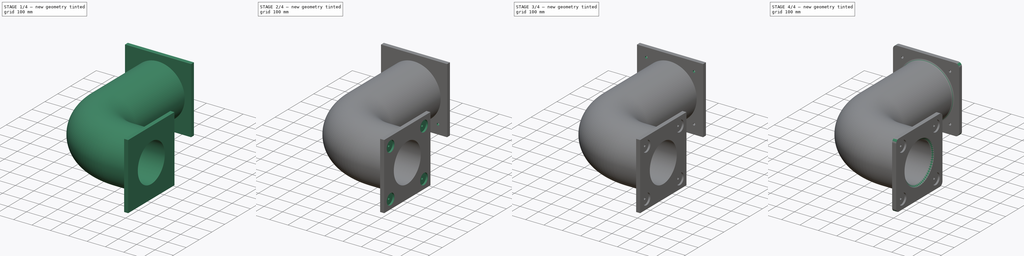
[diagram: build sequence overview — one tinted view per stage of 4, left to right]
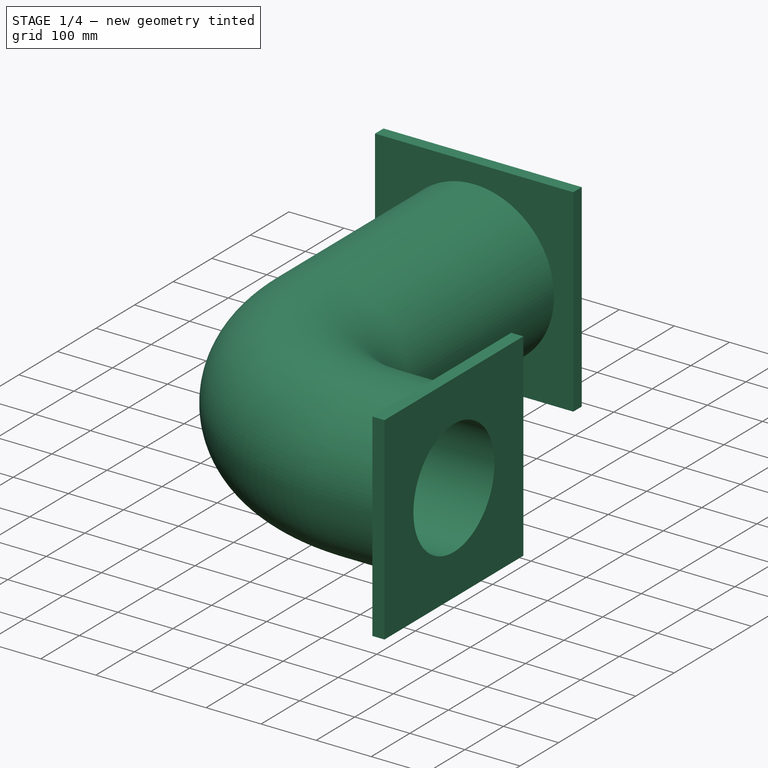
[diagram: stage 1 of 4 — iso view after this stage's code; geometry added in this stage tinted green]
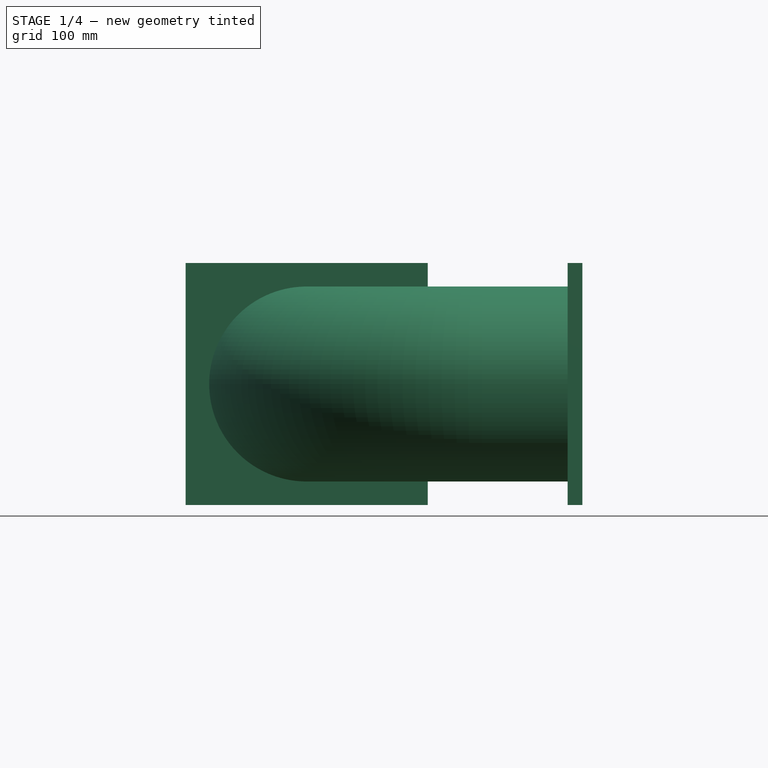
[diagram: stage 1 of 4 — front view after this stage's code; geometry added in this stage tinted green]
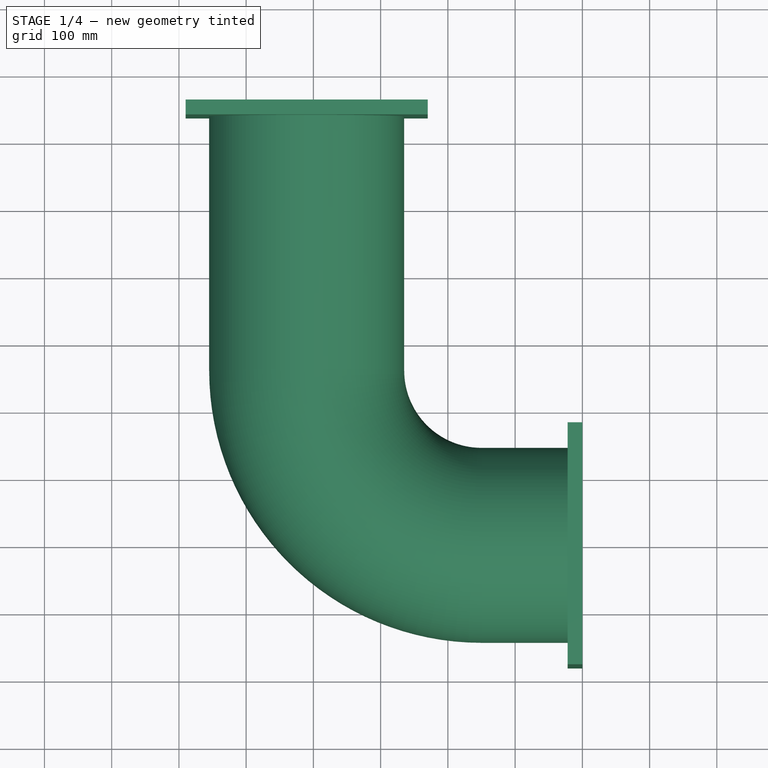
[diagram: stage 1 of 4 — top view after this stage's code; geometry added in this stage tinted green]
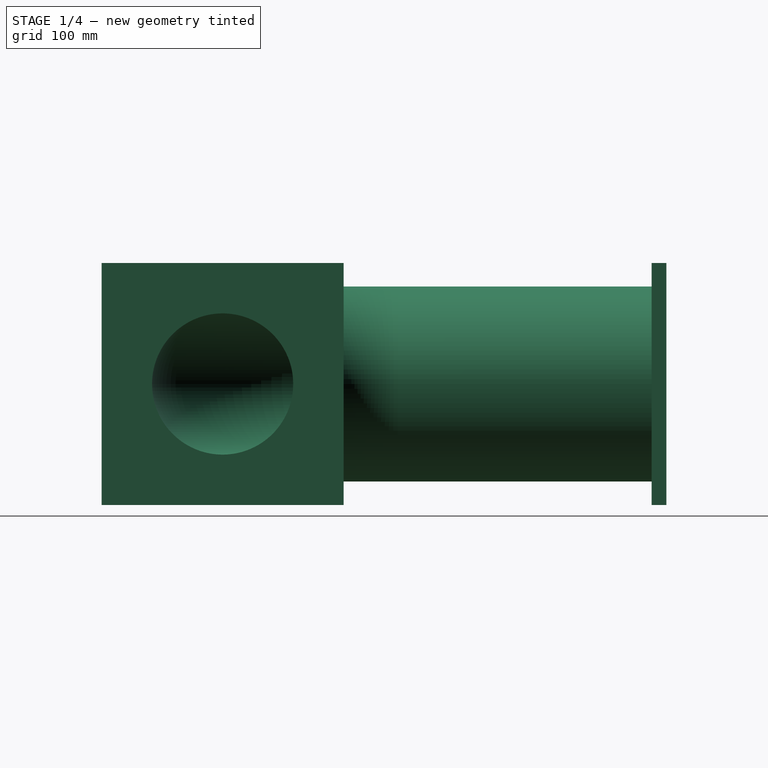
[diagram: stage 1 of 4 — right view after this stage's code; geometry added in this stage tinted green]
FCSTD DOCUMENT  (FreeCAD 1.0R39285 (Git))
Label: elbow pipe with flange(parametric)
License: All rights reserved
LicenseURL: https://en.wikipedia.org/wiki/All_rights_reserved
objects: Sketcher::SketchObject×6, PartDesign::Pad×2, PartDesign::Hole×2, PartDesign::PolarPattern×2, PartDesign::Chamfer×2, PartDesign::Fillet×2, Spreadsheet::Sheet×1, PartDesign::AdditivePipe×1, PartDesign::Body×1
note: 44 computed .brp shape members not serialized (recipe doc carries the construction recipe); baked Part::Feature solids carry a one-line shape summary decoded from their .brp

FEATURE [Spreadsheet::Sheet] Spreadsheet
  cells = A1='vertical_line1_len; B1(vertical_line1_len)=400; A2='horizontal_line1_len; B2(horizontal_line1_len)=150; A3='arc1_rad; B3(arc1_rad)=260; A4='pipe_id; B4(pipe_id)=210; A5='pipe_od; B5(pipe_od)=290; A6='flange_height; B6(flange_height)=360; A7='flange_width; B7(flange_width)=360; A8='flange_thickness; B8(flange_thickness)=22; A9='hole_position_x; B9(hole_position_x)=130; A10='hole_position_y; B10(hole_position_y)=130; A11='hole_dia; B11(hole_dia)=12.5; A12='counterbore_dia; B12(counterbore_dia)=60; A13='counterbore_depth; B13(counterbore_depth)=10; A14='pipe_chamfer_size; B14(chamfer_dia)=10; A15='corner_fillet_rad; B15(corner_fillet_dia)=20; A16='pipe_fillet_rad; B16(pipe_fillet_rad)=10
FEATURE [Sketcher::SketchObject] Sketch
  ArcFitTolerance = 1e-06
  AttachmentSupport = -> [XY_Plane]
  FullyConstrained = true
  MakeInternals = false
  MapMode = 5
  expr: Constraints[7] = <<Spreadsheet>>.horizontal_line1_len
  expr: Constraints[8] = <<Spreadsheet>>.vertical_line1_len
  expr: Constraints[9] = <<Spreadsheet>>.arc1_rad
  sketch-geometry (4):
    g0: LineSegment StartX=0 StartY=0 StartZ=0 EndX=-150 EndY=0 EndZ=0
    g1: LineSegment StartX=-410 StartY=260 StartZ=0 EndX=-410 EndY=660 EndZ=0
    g2: ArcOfCircle CenterX=-150 CenterY=260 CenterZ=0 NormalX=0 NormalY=0 NormalZ=1 AngleXU=0 Radius=260 StartAngle=3.14159 EndAngle=4.71239
    g3: GeomPoint [constr] X=-410 Y=0 Z=0
  constraints (10):
    c: Coincident(g-1,g0)
    c: PointOnObject(g3,g-1)
    c: Vertical(g1)
    c: PointOnObject(g3,g1)
    c: PointOnObject(g3,g0)
    c: Tangent(g1,g2) = 1.5708
    c: Tangent(g0,g2) = 1.5708
    c: DistanceX(g0,g0) = 150
    c: Distance(g1,g1) = 400
    c: Radius(g2) = 260
FEATURE [Sketcher::SketchObject] Sketch001
  ArcFitTolerance = 1e-06
  AttachmentSupport = -> [YZ_Plane]
  FullyConstrained = true
  MakeInternals = false
  MapMode = 5
  Placement = pos=(0,0,0) rot=(0.57735,0.57735,0.57735;2.0944rad)
  expr: Constraints[1] = <<Spreadsheet>>.pipe_id
  expr: Constraints[3] = <<Spreadsheet>>.pipe_od
  sketch-geometry (2):
    g0: Circle CenterX=0 CenterY=0 CenterZ=0 NormalX=0 NormalY=0 NormalZ=1 AngleXU=0 Radius=105
    g1: Circle CenterX=0 CenterY=0 CenterZ=0 NormalX=0 NormalY=0 NormalZ=1 AngleXU=0 Radius=145
  constraints (4):
    c: Coincident(g0,g-1)
    c: Diameter(g0) = 210
    c: Coincident(g1,g0)
    c: Diameter(g1) = 290
FEATURE [PartDesign::AdditivePipe] AdditivePipe
  AuxilleryCurvelinear = true
  AuxillerySpineTangent = false
  Binormal = (0,0,0)
  Mode = 0
  Placement = pos=(0,0,0) rot=(1,1,1;2.0944rad)
  Profile = -> Sketch001
  Refine = true
  Spine = -> Sketch
  SpineTangent = false
  Suppressed = false
  Transformation = 0
  Transition = 0
FEATURE [Sketcher::SketchObject] Sketch002
  ArcFitTolerance = 1e-06
  AttachmentSupport = -> [AdditivePipe]
  ExternalGeometry = -> [AdditivePipe]
  FullyConstrained = true
  MakeInternals = false
  MapMode = 5
  Placement = pos=(-5.175e-13,660,-3.72e-13) rot=(0.57735,0.57735,0.57735;4.18879rad)
  expr: Constraints[12] = <<Spreadsheet>>.flange_width
  expr: Constraints[13] = <<Spreadsheet>>.flange_height
  sketch-geometry (6):
    g0: Circle CenterX=1.066e-13 CenterY=-410 CenterZ=0 NormalX=0 NormalY=0 NormalZ=1 AngleXU=0 Radius=105
    g1: LineSegment StartX=-180 StartY=-230 StartZ=0 EndX=-180 EndY=-590 EndZ=0
    g2: LineSegment StartX=-180 StartY=-590 StartZ=0 EndX=180 EndY=-590 EndZ=0
    g3: LineSegment StartX=180 StartY=-590 StartZ=0 EndX=180 EndY=-230 EndZ=0
    g4: LineSegment StartX=180 StartY=-230 StartZ=0 EndX=-180 EndY=-230 EndZ=0
    g5: GeomPoint [constr] X=1.066e-13 Y=-410 Z=0
  constraints (14):
    c: Coincident(g0,g-3)
    c: Equal(g0,g-3)
    c: Coincident(g1,g2)
    c: Coincident(g2,g3)
    c: Coincident(g3,g4)
    c: Coincident(g4,g1)
    c: Vertical(g1)
    c: Vertical(g3)
    c: Horizontal(g2)
    c: Horizontal(g4)
    c: Symmetric(g3,g1,g5)
    c: Coincident(g5,g0)
    c: DistanceX(g4,g4) = 360
    c: DistanceY(g3,g3) = 360
FEATURE [PartDesign::Pad] Pad
  BaseFeature = -> AdditivePipe
  Direction = (0,1,0)
  Length = 22
  Length2 = 10
  Placement = pos=(0,0,0) rot=(1,1,1;2.0944rad)
  Profile = -> Sketch002
  ReferenceAxis = -> Sketch002 [N_Axis]
  Refine = true
  Reversed = true
  Suppressed = false
  Type = 0
  expr: Length = <<Spreadsheet>>.flange_thickness
FEATURE [Sketcher::SketchObject] Sketch003
  ArcFitTolerance = 1e-06
  AttachmentSupport = -> [Pad]
  FullyConstrained = true
  MakeInternals = false
  MapMode = 5
  Placement = pos=(0,0,0) rot=(0.57735,0.57735,0.57735;2.0944rad)
  expr: Constraints[12] = <<Spreadsheet>>.flange_height
  expr: Constraints[13] = <<Spreadsheet>>.flange_width
  expr: Constraints[1] = <<Spreadsheet>>.pipe_id
  sketch-geometry (6):
    g0: Circle CenterX=0 CenterY=0 CenterZ=0 NormalX=0 NormalY=0 NormalZ=1 AngleXU=0 Radius=105
    g1: LineSegment StartX=-180 StartY=180 StartZ=0 EndX=-180 EndY=-180 EndZ=0
    g2: LineSegment StartX=-180 StartY=-180 StartZ=0 EndX=180 EndY=-180 EndZ=0
    g3: LineSegment StartX=180 StartY=-180 StartZ=0 EndX=180 EndY=180 EndZ=0
    g4: LineSegment StartX=180 StartY=180 StartZ=0 EndX=-180 EndY=180 EndZ=0
    g5: GeomPoint [constr] X=0 Y=0 Z=0
  constraints (14):
    c: Coincident(g0,g-1)
    c: Diameter(g0) = 210
    c: Coincident(g1,g2)
    c: Coincident(g2,g3)
    c: Coincident(g3,g4)
    c: Coincident(g4,g1)
    c: Vertical(g1)
    c: Vertical(g3)
    c: Horizontal(g2)
    c: Horizontal(g4)
    c: Symmetric(g3,g1,g5)
    c: Coincident(g5,g0)
    c: DistanceY(g1,g1) = 360
    c: DistanceX(g4,g4) = 360
FEATURE [PartDesign::Pad] Pad001
  BaseFeature = -> Pad
  Direction = (1,0,0)
  Length = 22
  Length2 = 10
  Placement = pos=(0,0,0) rot=(1,1,1;2.0944rad)
  Profile = -> Sketch003
  ReferenceAxis = -> Sketch003 [N_Axis]
  Refine = true
  Reversed = true
  Suppressed = false
  Type = 0
  expr: Length = <<Spreadsheet>>.flange_thickness
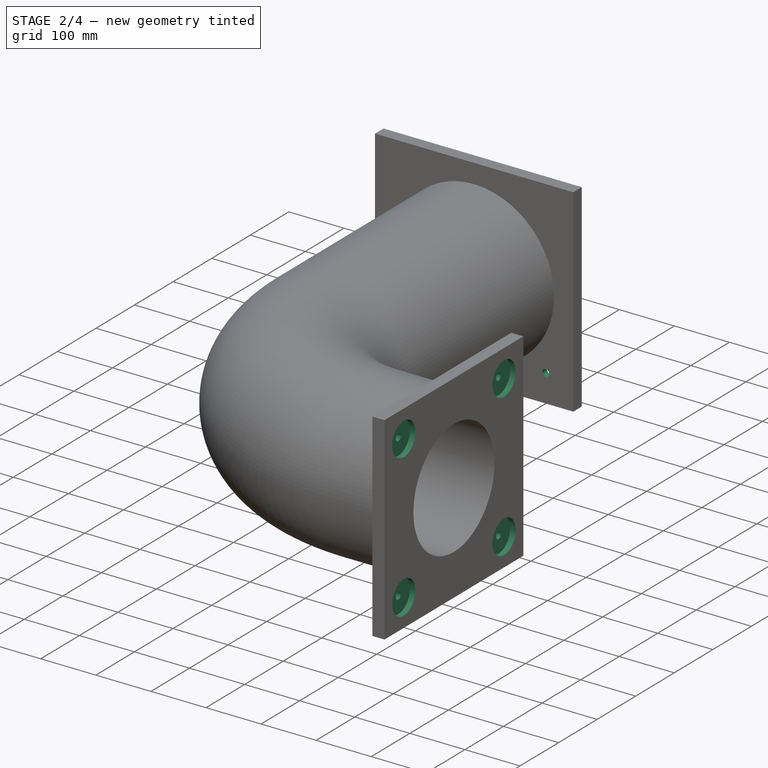
[diagram: stage 2 of 4 — iso view after this stage's code; geometry added in this stage tinted green]
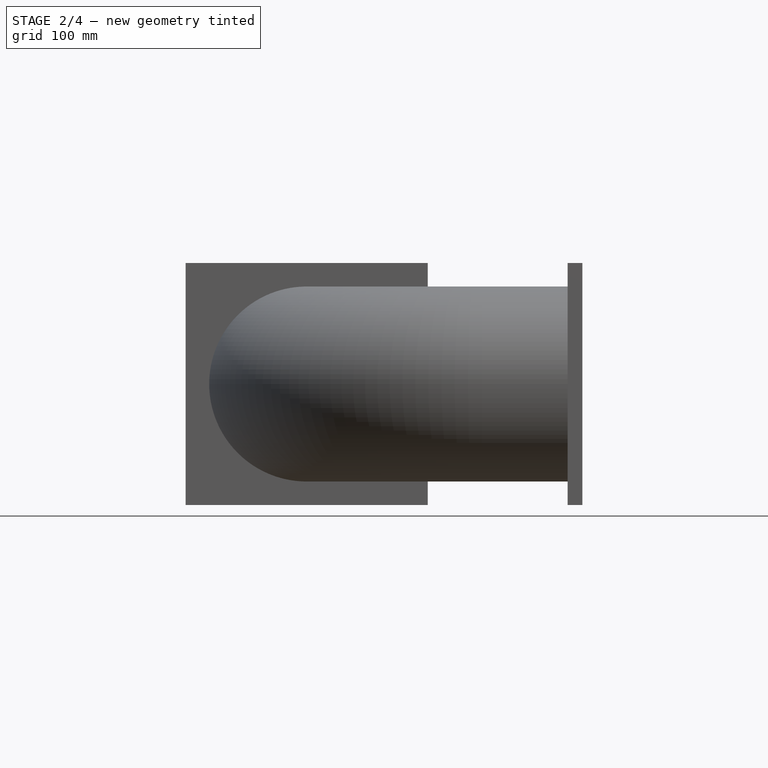
[diagram: stage 2 of 4 — front view after this stage's code; geometry added in this stage tinted green]
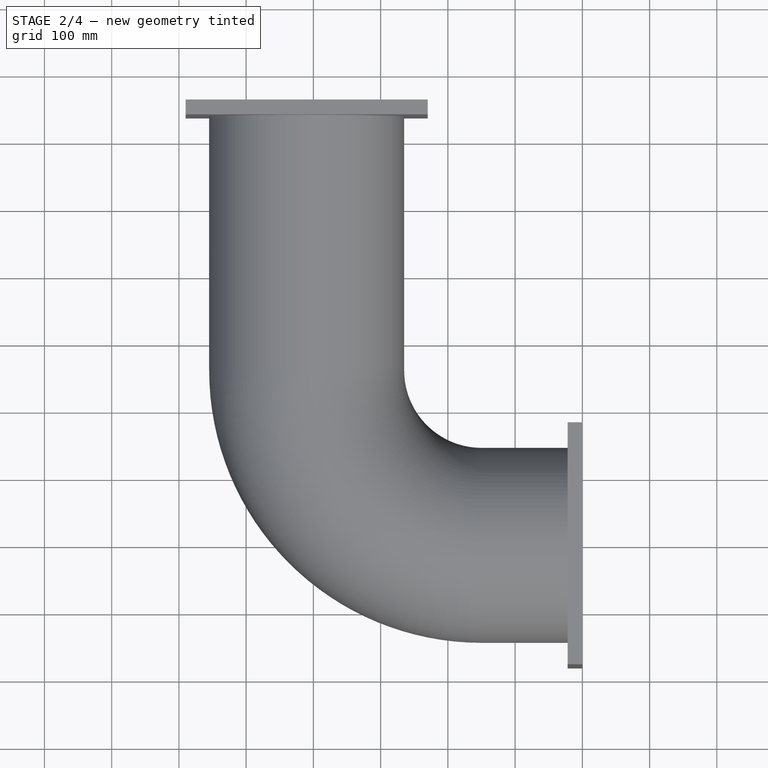
[diagram: stage 2 of 4 — top view after this stage's code; geometry added in this stage tinted green]
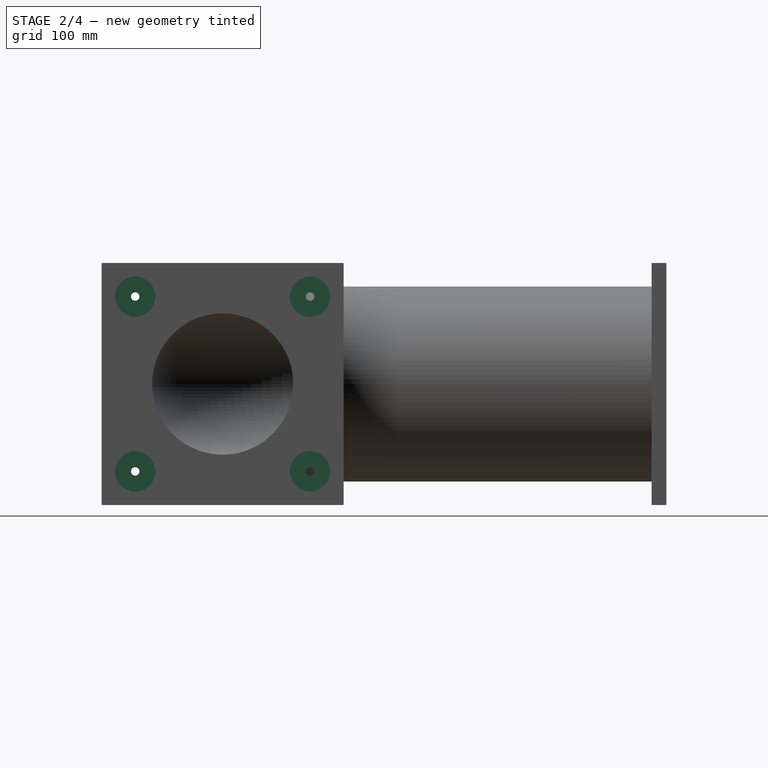
[diagram: stage 2 of 4 — right view after this stage's code; geometry added in this stage tinted green]
FEATURE [Sketcher::SketchObject] Sketch004
  ArcFitTolerance = 1e-06
  AttachmentSupport = -> [Pad001]
  ExternalGeometry = -> [Pad001]
  FullyConstrained = true
  MakeInternals = false
  MapMode = 5
  Placement = pos=(0,0,0) rot=(0.57735,0.57735,0.57735;2.0944rad)
  expr: Constraints[0] = <<Spreadsheet>>.hole_dia
  expr: Constraints[1] = <<Spreadsheet>>.hole_position_y
  expr: Constraints[2] = <<Spreadsheet>>.hole_position_x
  sketch-geometry (1):
    g0: Circle CenterX=-130 CenterY=130 CenterZ=0 NormalX=0 NormalY=0 NormalZ=1 AngleXU=0 Radius=6.25
  constraints (3):
    c: Diameter(g0) = 12.5
    c: Distance(g0,g-1) = 130
    c: Distance(g0,g-2) = 130
FEATURE [PartDesign::Hole] Hole
  BaseFeature = -> Pad001
  CustomThreadClearance = 0
  Depth = 22
  DepthType = 0
  Diameter = 12.5
  DrillForDepth = false
  DrillPoint = 0
  DrillPointAngle = 118
  HoleCutCountersinkAngle = 90
  HoleCutCustomValues = false
  HoleCutDepth = 10
  HoleCutDiameter = 60
  HoleCutType = 1
  ModelThread = false
  Placement = pos=(0,0,0) rot=(1,1,1;2.0944rad)
  Profile = -> Sketch004
  Refine = true
  Suppressed = false
  Tapered = false
  TaperedAngle = 90
  ThreadClass = 0
  ThreadDepth = 22
  ThreadDepthType = 0
  ThreadDirection = 0
  ThreadFit = 0
  ThreadSize = 0
  ThreadType = 0
  Threaded = false
  UseCustomThreadClearance = false
  expr: Depth = <<Spreadsheet>>.flange_thickness
  expr: Diameter = <<Spreadsheet>>.hole_dia
  expr: HoleCutDepth = <<Spreadsheet>>.counterbore_depth
  expr: HoleCutDiameter = <<Spreadsheet>>.counterbore_dia
FEATURE [PartDesign::PolarPattern] PolarPattern
  Angle = 360
  Axis = -> Sketch004 [N_Axis]
  BaseFeature = -> Hole
  Mode = 0
  Occurrences = 4
  Offset = 120
  Originals = -> [Hole]
  Placement = pos=(0,0,0) rot=(1,1,1;2.0944rad)
  Refine = true
  Suppressed = false
  TransformMode = 0
FEATURE [Sketcher::SketchObject] Sketch005
  ArcFitTolerance = 1e-06
  AttachmentSupport = -> [PolarPattern]
  ExternalGeometry = -> [PolarPattern]
  FullyConstrained = true
  MakeInternals = false
  MapMode = 5
  Placement = pos=(2.084e-13,660,-5.129e-13) rot=(0.57735,0.57735,0.57735;4.18879rad)
  expr: Constraints[0] = <<Spreadsheet>>.hole_position_x
  expr: Constraints[1] = <<Spreadsheet>>.hole_position_y
  expr: Constraints[2] = <<Spreadsheet>>.hole_dia
  sketch-geometry (1):
    g0: Circle CenterX=-130 CenterY=-280 CenterZ=0 NormalX=0 NormalY=0 NormalZ=1 AngleXU=0 Radius=6.25
  constraints (3):
    c: DistanceX(g0,g-4) = 130
    c: DistanceY(g-4,g0) = 130
    c: Diameter(g0) = 12.5
FEATURE [PartDesign::Hole] Hole001
  BaseFeature = -> PolarPattern
  CustomThreadClearance = 0
  Depth = 22
  DepthType = 0
  Diameter = 12.5
  DrillForDepth = false
  DrillPoint = 0
  DrillPointAngle = 118
  HoleCutCountersinkAngle = 90
  HoleCutCustomValues = false
  HoleCutDepth = 10
  HoleCutDiameter = 60
  HoleCutType = 1
  ModelThread = false
  Placement = pos=(0,0,0) rot=(1,1,1;2.0944rad)
  Profile = -> Sketch005
  Refine = true
  Suppressed = false
  Tapered = false
  TaperedAngle = 90
  ThreadClass = 0
  ThreadDepth = 22
  ThreadDepthType = 0
  ThreadDirection = 0
  ThreadFit = 0
  ThreadSize = 0
  ThreadType = 0
  Threaded = false
  UseCustomThreadClearance = false
  expr: Depth = <<Spreadsheet>>.flange_thickness
  expr: Diameter = <<Spreadsheet>>.hole_dia
  expr: HoleCutDepth = <<Spreadsheet>>.counterbore_depth
  expr: HoleCutDiameter = <<Spreadsheet>>.counterbore_dia
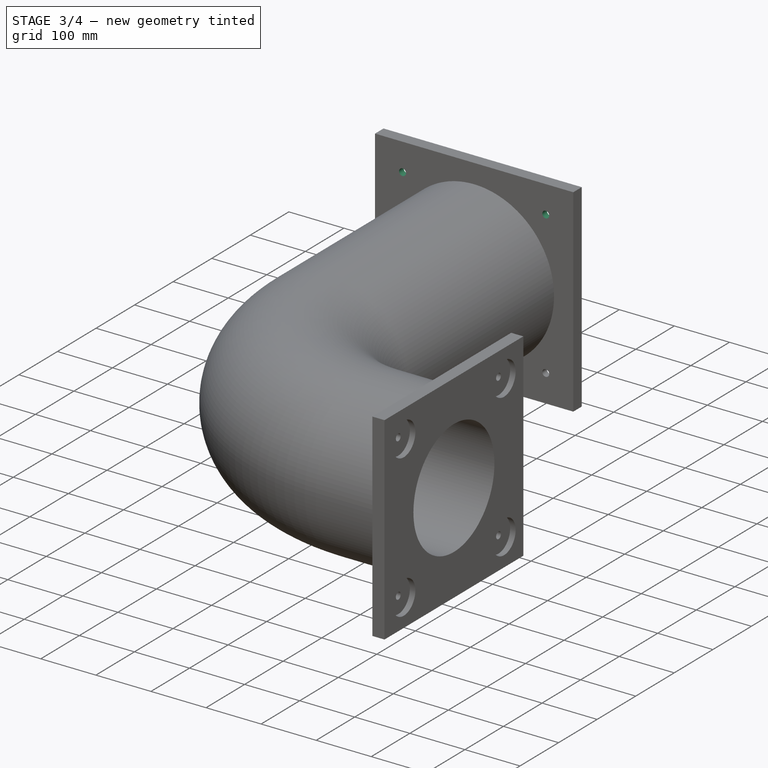
[diagram: stage 3 of 4 — iso view after this stage's code; geometry added in this stage tinted green]
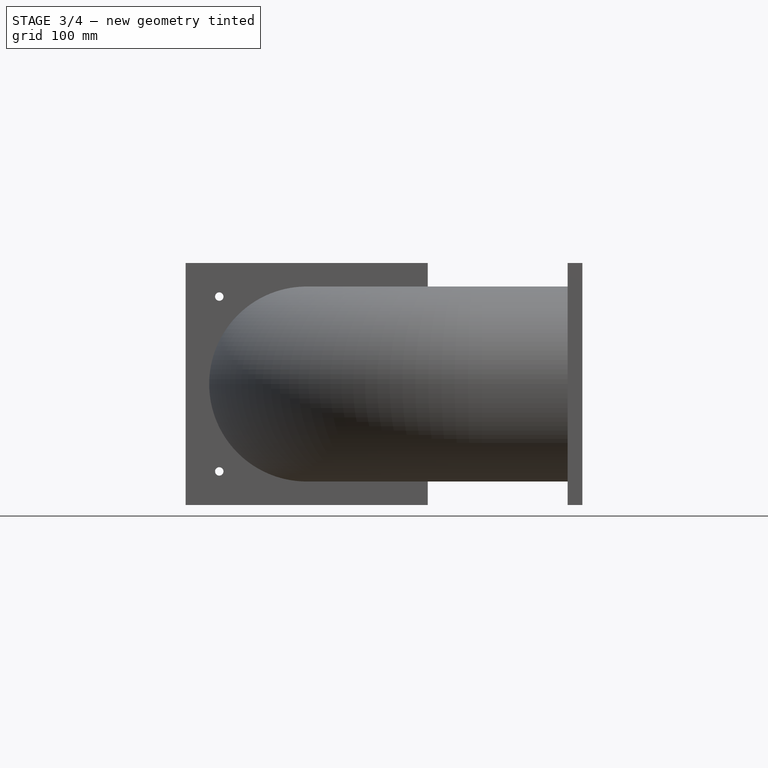
[diagram: stage 3 of 4 — front view after this stage's code; geometry added in this stage tinted green]
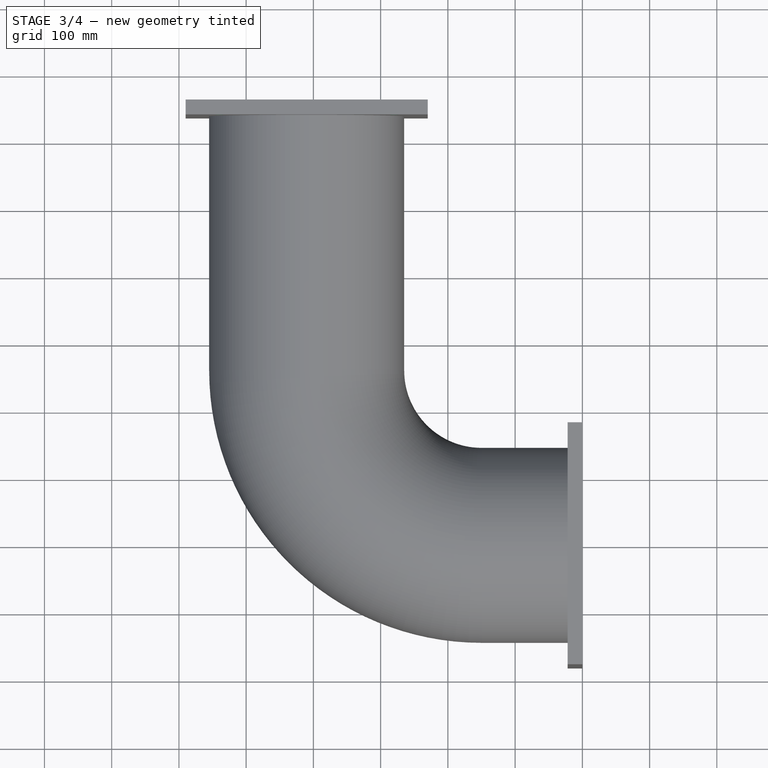
[diagram: stage 3 of 4 — top view after this stage's code; geometry added in this stage tinted green]
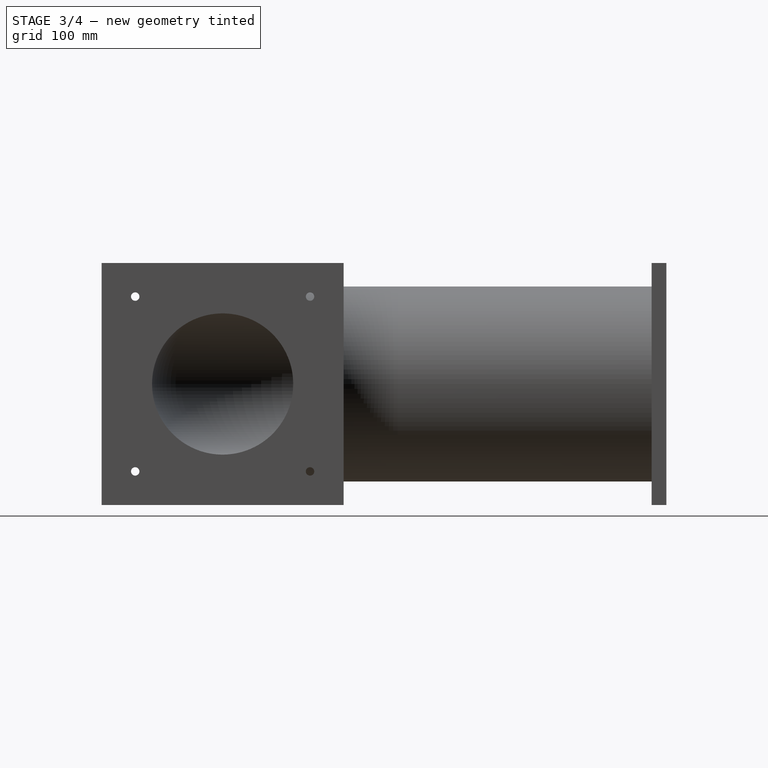
[diagram: stage 3 of 4 — right view after this stage's code; geometry added in this stage tinted green]
FEATURE [PartDesign::PolarPattern] PolarPattern001
  Angle = 360
  Axis = -> Hole001 [Edge8]
  BaseFeature = -> Hole001
  Mode = 0
  Occurrences = 4
  Offset = 120
  Originals = -> [Hole001]
  Placement = pos=(0,0,0) rot=(1,1,1;2.0944rad)
  Refine = true
  Suppressed = false
  TransformMode = 0
FEATURE [PartDesign::Chamfer] Chamfer
  Angle = 45
  Base = -> PolarPattern001 [Edge8]
  BaseFeature = -> PolarPattern001
  ChamferType = 0
  FlipDirection = false
  Placement = pos=(0,0,0) rot=(1,1,1;2.0944rad)
  Refine = true
  Size = 10
  Size2 = 1
  SupportTransform = false
  Suppressed = false
  UseAllEdges = false
  expr: Size = <<Spreadsheet>>.chamfer_dia
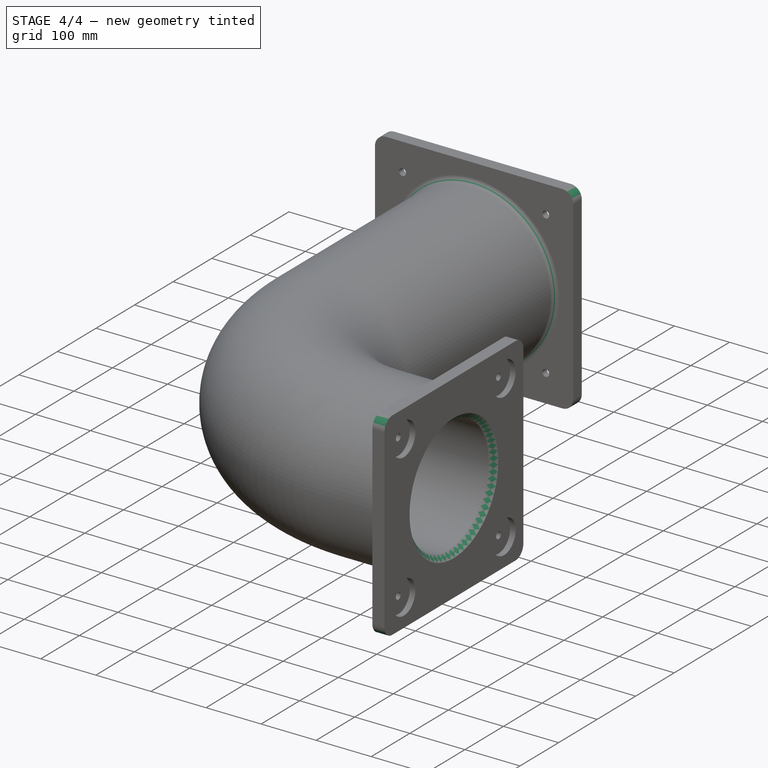
[diagram: stage 4 of 4 — iso view after this stage's code; geometry added in this stage tinted green]
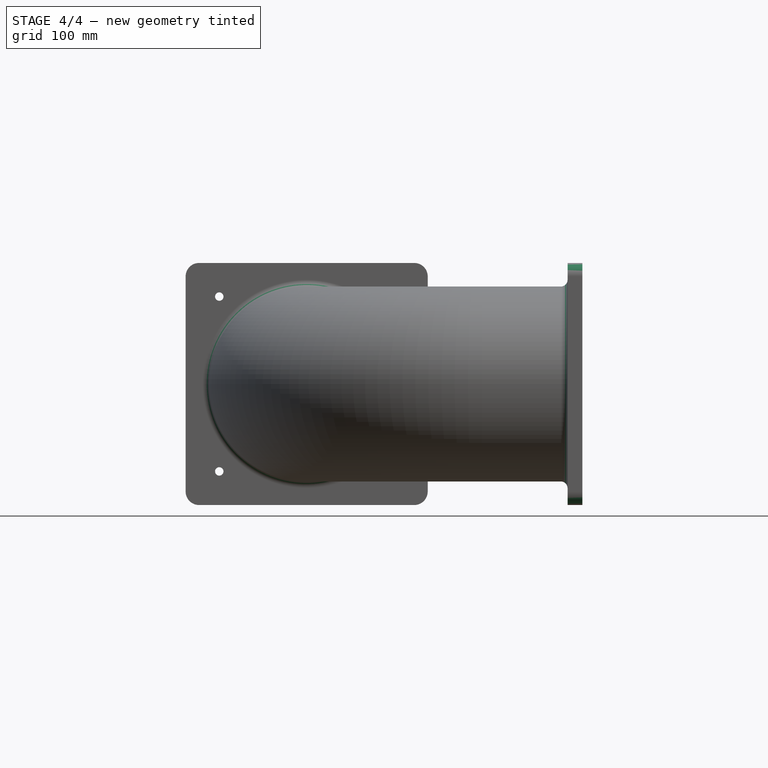
[diagram: stage 4 of 4 — front view after this stage's code; geometry added in this stage tinted green]
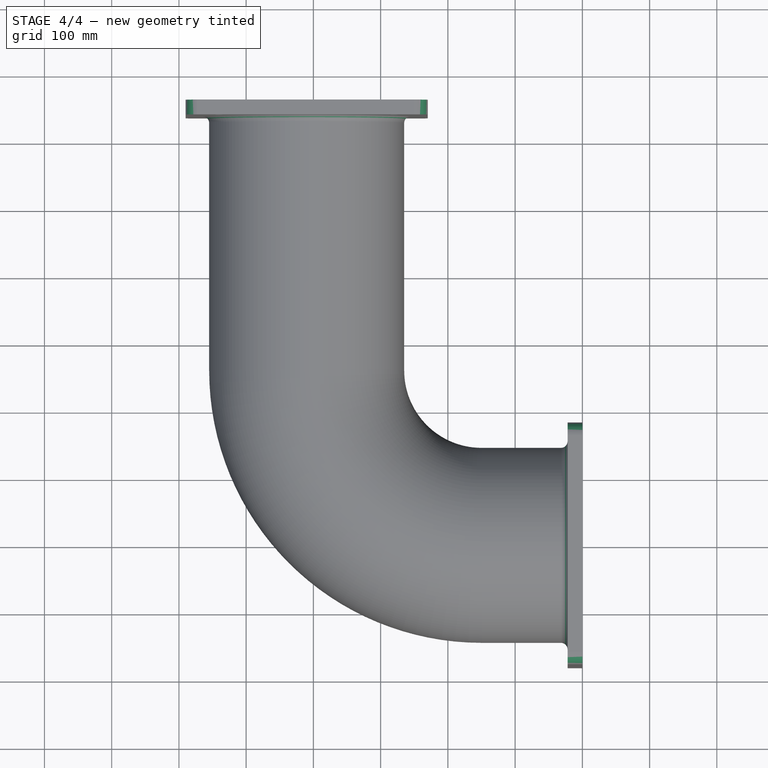
[diagram: stage 4 of 4 — top view after this stage's code; geometry added in this stage tinted green]
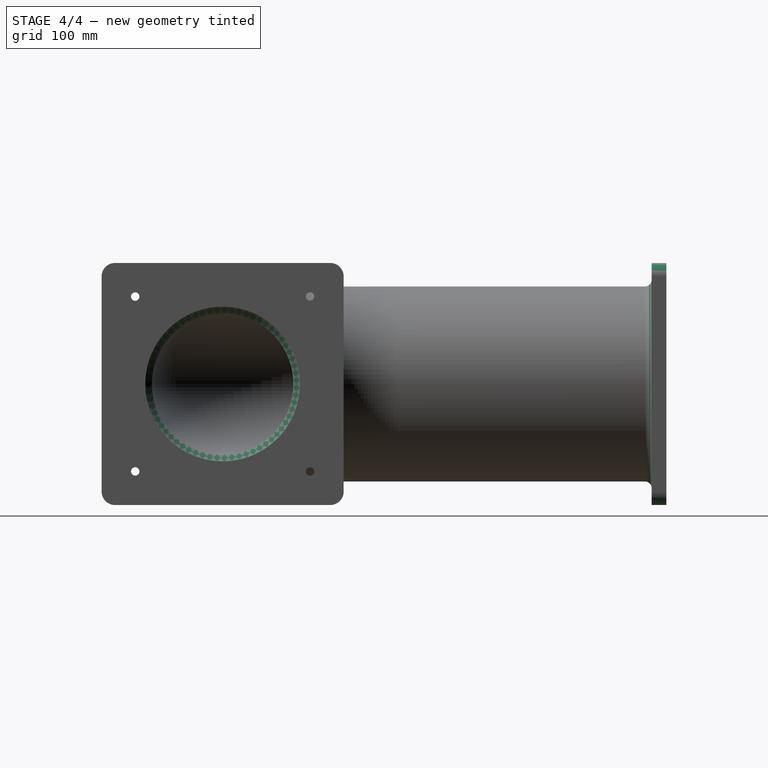
[diagram: stage 4 of 4 — right view after this stage's code; geometry added in this stage tinted green]
FEATURE [PartDesign::Chamfer] Chamfer001
  Angle = 45
  Base = -> Chamfer [Edge20]
  BaseFeature = -> Chamfer
  ChamferType = 0
  FlipDirection = false
  Placement = pos=(0,0,0) rot=(1,1,1;2.0944rad)
  Refine = true
  Size = 10
  Size2 = 1
  SupportTransform = false
  Suppressed = false
  UseAllEdges = false
  expr: Size = <<Spreadsheet>>.chamfer_dia
FEATURE [PartDesign::Fillet] Fillet
  Base = -> Chamfer001 [Edge62,Edge65,Edge63,Edge67,Edge24,Edge22,Edge19,Edge20]
  BaseFeature = -> Chamfer001
  Placement = pos=(0,0,0) rot=(1,1,1;2.0944rad)
  Radius = 20
  Refine = true
  SupportTransform = false
  Suppressed = false
  UseAllEdges = false
  expr: Radius = <<Spreadsheet>>.corner_fillet_dia
FEATURE [PartDesign::Fillet] Fillet001
  Base = -> Fillet [Edge43,Edge65]
  BaseFeature = -> Fillet
  Placement = pos=(0,0,0) rot=(1,1,1;2.0944rad)
  Radius = 10
  Refine = true
  SupportTransform = false
  Suppressed = false
  UseAllEdges = false
  expr: Radius = <<Spreadsheet>>.pipe_fillet_rad
FEATURE [PartDesign::Body] Body
  AllowCompound = false
  Group = -> [Sketch,Sketch001,AdditivePipe,Sketch002,Pad,Sketch003,Pad001,Sketch004,Hole,PolarPattern,Sketch005,Hole001,PolarPattern001,Chamfer,Chamfer001,Fillet,Fillet001]
  Origin = -> Origin
  Tip = -> Fillet001
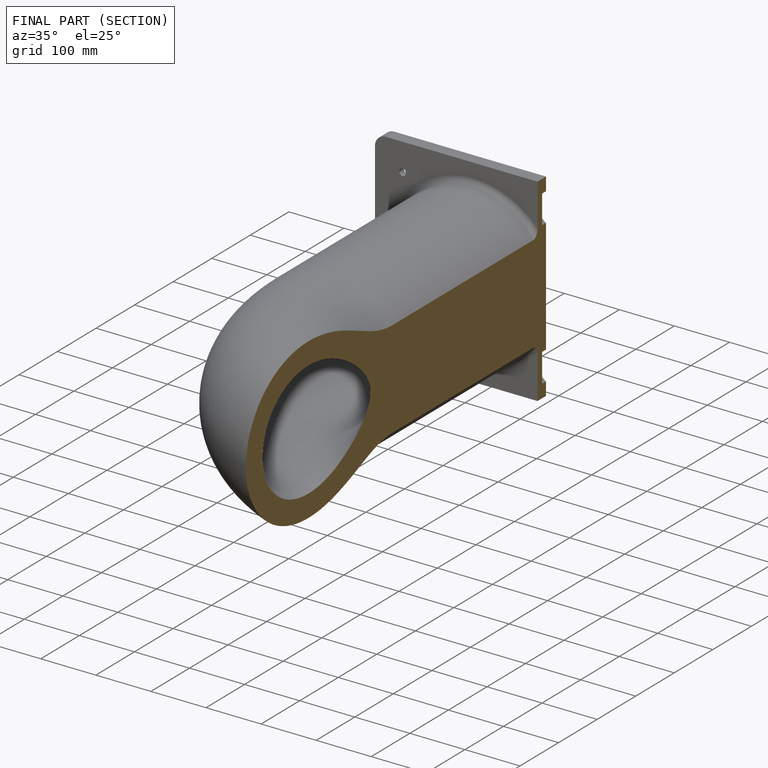
[diagram: finished part — half-section view (interior)]
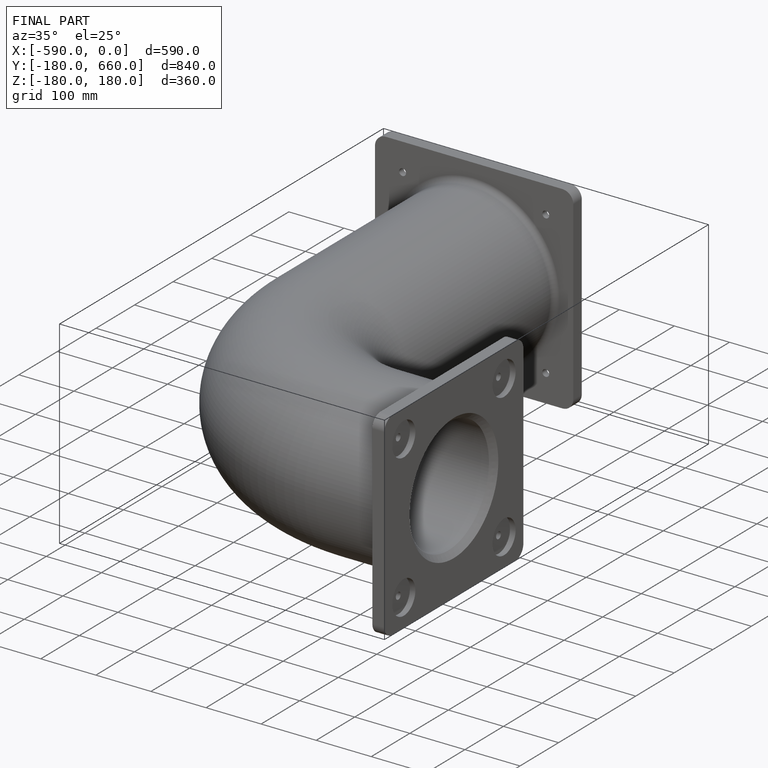
[diagram: finished part — iso view with bounding-box wireframe]
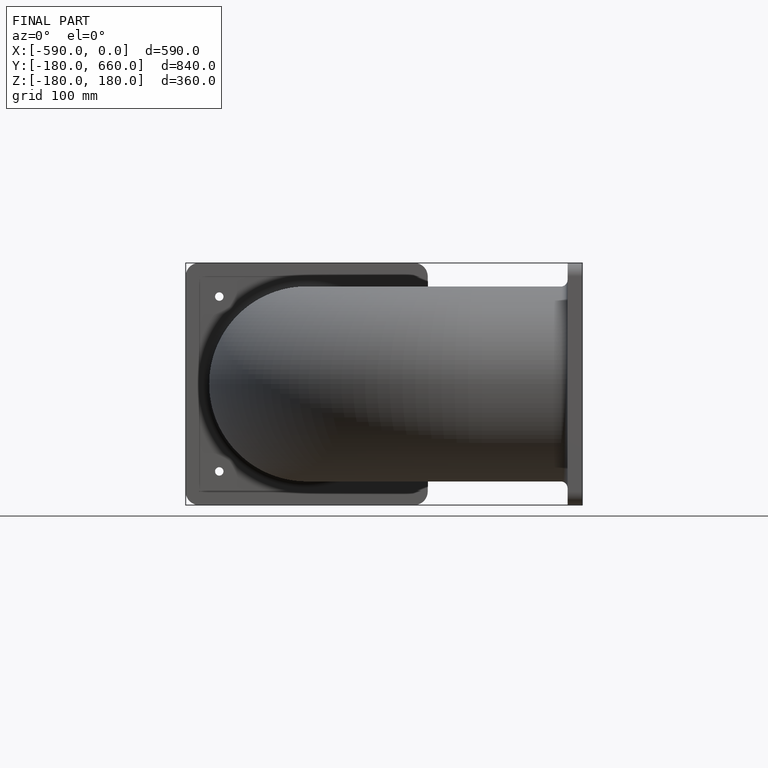
[diagram: finished part — front view with bounding-box wireframe]
